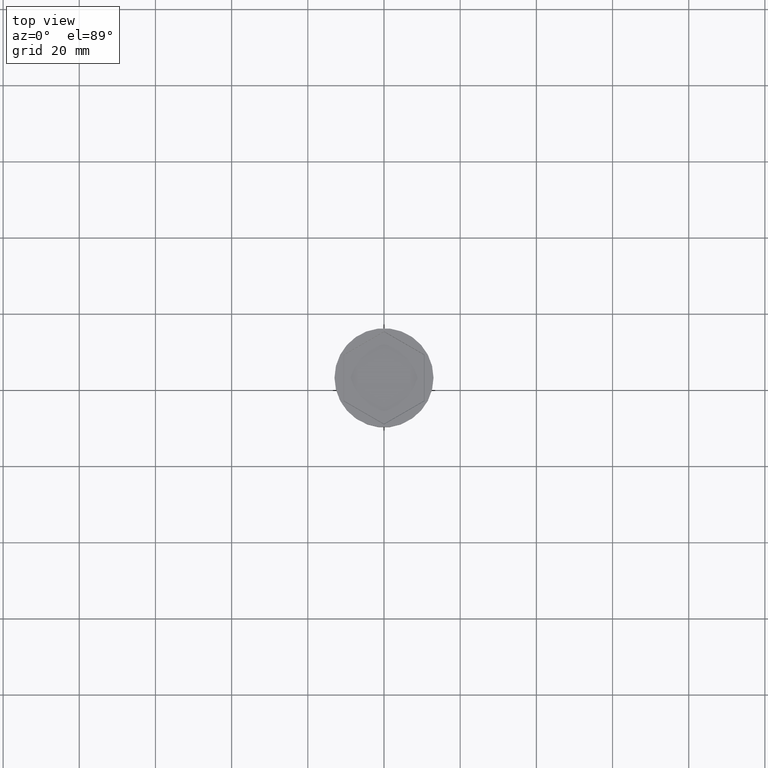
[diagram: clean part render]
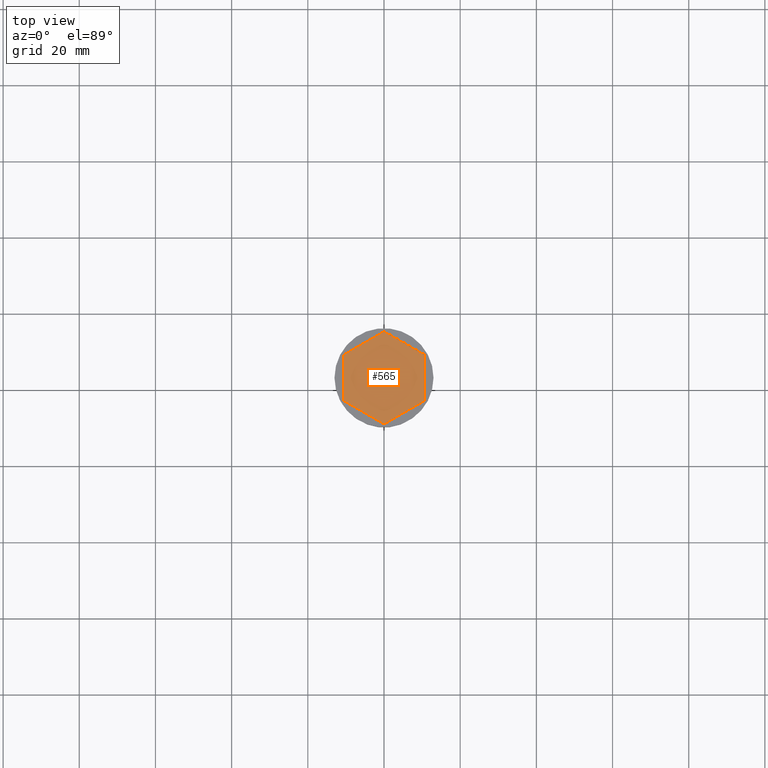
[diagram: same view with one face highlighted and labeled with its STEP entity id]
A machine part, top view. The second image highlights one B-rep face of the part: STEP entity #565.
In plain terms, the highlighted planar face has unit normal (-0, 0, 1).
Its self-contained STEP definition (entity closure, byte-faithful):
#8 = ORIENTED_EDGE ( 'NONE', *, *, #560, .T. ) ;
#43 = CARTESIAN_POINT ( 'NONE',  ( 5.249999999999996447, 9.093266739736606041, -2.000000000000000000 ) ) ;
#78 = LINE ( 'NONE', #1580, #296 ) ;
#89 = CARTESIAN_POINT ( 'NONE',  ( -10.49999999999999822, -6.062177826491072175, -2.000000000000000000 ) ) ;
#102 = ORIENTED_EDGE ( 'NONE', *, *, #1282, .T. ) ;
#124 = CARTESIAN_POINT ( 'NONE',  ( 10.49999999999999822, 0.000000000000000000, -2.000000000000000000 ) ) ;
#130 = CARTESIAN_POINT ( 'NONE',  ( -5.249999999999997335, 9.093266739736602489, -2.000000000000000000 ) ) ;
#133 = VERTEX_POINT ( 'NONE', #304 ) ;
#215 = ORIENTED_EDGE ( 'NONE', *, *, #223, .T. ) ;
#223 = EDGE_CURVE ( 'NONE', #255, #1560, #1401, .T. ) ;
#255 = VERTEX_POINT ( 'NONE', #1573 ) ;
#286 = CARTESIAN_POINT ( 'NONE',  ( 0.000000000000000000, -12.12435565298214080, -2.000000000000000000 ) ) ;
#291 = EDGE_CURVE ( 'NONE', #386, #1465, #78, .T. ) ;
#296 = VECTOR ( 'NONE', #1553, 1000.000000000000114 ) ;
#304 = CARTESIAN_POINT ( 'NONE',  ( 10.49999999999999822, -6.062177826491069510, -2.000000000000000000 ) ) ;
#342 = EDGE_CURVE ( 'NONE', #1119, #386, #605, .T. ) ;
#343 = DIRECTION ( 'NONE',  ( 0.8660254037844385966, 0.5000000000000001110, 0.000000000000000000 ) ) ;
#386 = VERTEX_POINT ( 'NONE', #89 ) ;
#390 = CARTESIAN_POINT ( 'NONE',  ( 0.000000000000000000, 0.000000000000000000, -2.000000000000000000 ) ) ;
#424 = VECTOR ( 'NONE', #343, 1000.000000000000000 ) ;
#452 = VECTOR ( 'NONE', #492, 999.9999999999998863 ) ;
#492 = DIRECTION ( 'NONE',  ( -0.8660254037844387076, -0.5000000000000001110, 0.000000000000000000 ) ) ;
#499 = LINE ( 'NONE', #130, #452 ) ;
#523 = PLANE ( 'NONE',  #1537 ) ;
#537 = EDGE_LOOP ( 'NONE', ( #215, #8, #1457, #1447, #1403, #102 ) ) ;
#539 = CARTESIAN_POINT ( 'NONE',  ( 0.000000000000000000, 12.12435565298213724, -2.000000000000000000 ) ) ;
#560 = EDGE_CURVE ( 'NONE', #1560, #1119, #499, .T. ) ;
#565 = ADVANCED_FACE ( 'NONE', ( #1489 ), #523, .T. ) ;
#605 = LINE ( 'NONE', #834, #870 ) ;
#639 = DIRECTION ( 'NONE',  ( 1.000000000000000000, 0.000000000000000000, 0.000000000000000000 ) ) ;
#752 = LINE ( 'NONE', #124, #1304 ) ;
#834 = CARTESIAN_POINT ( 'NONE',  ( -10.49999999999999822, 0.000000000000000000, -2.000000000000000000 ) ) ;
#870 = VECTOR ( 'NONE', #1185, 1000.000000000000000 ) ;
#956 = CARTESIAN_POINT ( 'NONE',  ( 5.250000000000000000, -9.093266739736604265, -2.000000000000000000 ) ) ;
#979 = DIRECTION ( 'NONE',  ( 0.000000000000000000, 1.000000000000000000, -0.000000000000000000 ) ) ;
#1047 = DIRECTION ( 'NONE',  ( -0.8660254037844387076, 0.4999999999999997224, 0.000000000000000000 ) ) ;
#1090 = CARTESIAN_POINT ( 'NONE',  ( -10.49999999999999822, 6.062177826491066845, -2.000000000000000000 ) ) ;
#1119 = VERTEX_POINT ( 'NONE', #1090 ) ;
#1184 = EDGE_CURVE ( 'NONE', #1465, #133, #1194, .T. ) ;
#1185 = DIRECTION ( 'NONE',  ( 0.000000000000000000, -1.000000000000000000, 0.000000000000000000 ) ) ;
#1194 = LINE ( 'NONE', #956, #424 ) ;
#1201 = VECTOR ( 'NONE', #1047, 1000.000000000000114 ) ;
#1282 = EDGE_CURVE ( 'NONE', #133, #255, #752, .T. ) ;
#1304 = VECTOR ( 'NONE', #979, 1000.000000000000000 ) ;
#1401 = LINE ( 'NONE', #43, #1201 ) ;
#1403 = ORIENTED_EDGE ( 'NONE', *, *, #1184, .T. ) ;
#1447 = ORIENTED_EDGE ( 'NONE', *, *, #291, .T. ) ;
#1457 = ORIENTED_EDGE ( 'NONE', *, *, #342, .T. ) ;
#1465 = VERTEX_POINT ( 'NONE', #286 ) ;
#1479 = DIRECTION ( 'NONE',  ( -0.000000000000000000, 0.000000000000000000, 1.000000000000000000 ) ) ;
#1489 = FACE_OUTER_BOUND ( 'NONE', #537, .T. ) ;
#1537 = AXIS2_PLACEMENT_3D ( 'NONE', #390, #1479, #639 ) ;
#1553 = DIRECTION ( 'NONE',  ( 0.8660254037844387076, -0.4999999999999998890, 0.000000000000000000 ) ) ;
#1560 = VERTEX_POINT ( 'NONE', #539 ) ;
#1573 = CARTESIAN_POINT ( 'NONE',  ( 10.49999999999999822, 6.062177826491071286, -2.000000000000000000 ) ) ;
#1580 = CARTESIAN_POINT ( 'NONE',  ( -5.249999999999998224, -9.093266739736606041, -2.000000000000000000 ) ) ;